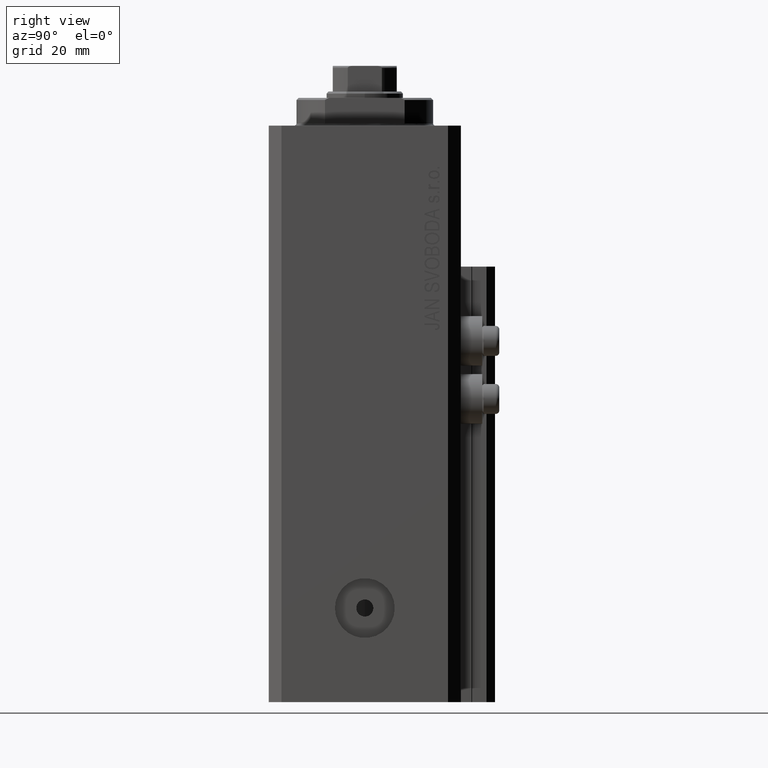
[diagram: clean part render]
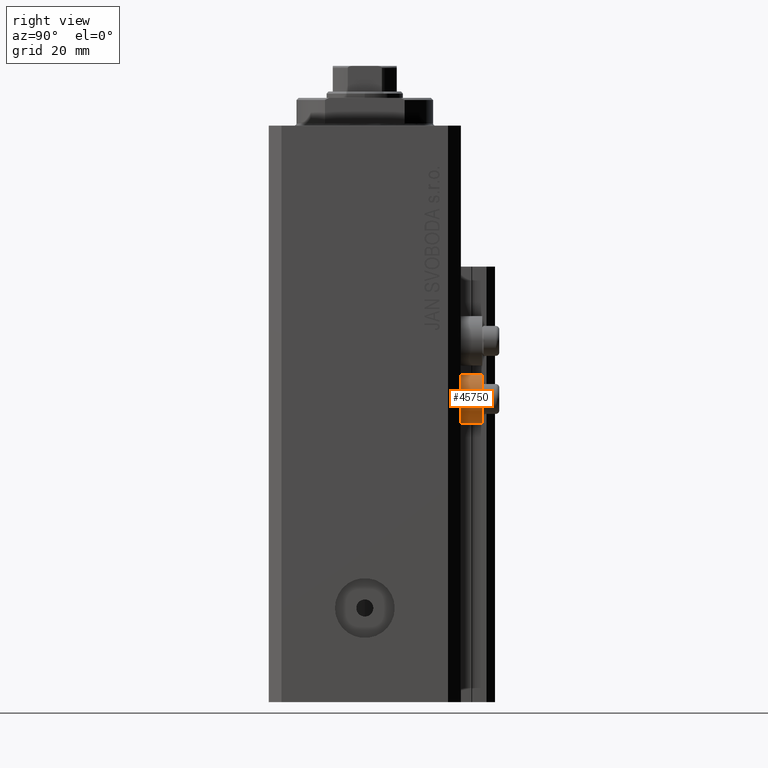
[diagram: same view with one face highlighted and labeled with its STEP entity id]
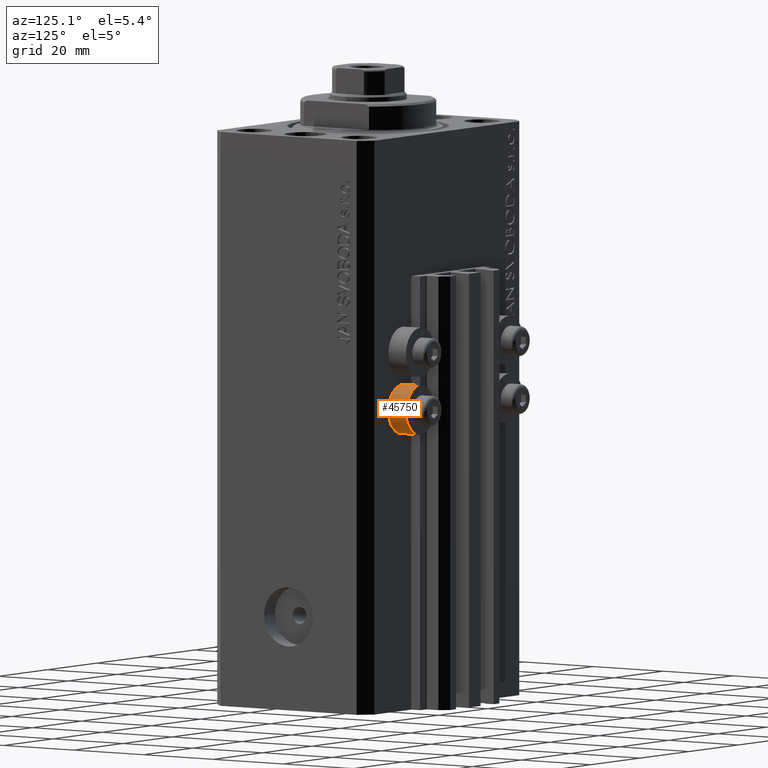
[diagram: same view with one face highlighted and labeled with its STEP entity id]
A machine part, right view. The second image highlights one B-rep face of the part: STEP entity #45750.
A second angle (auxiliary view) of the same face is appended — the face is thin or edge-on in the first view.
In plain terms, the highlighted cylindrical surface (edge-blend (fillet) strip) has radius 5.8 mm, axis along (0, 1, 0).
Its self-contained STEP definition (entity closure, byte-faithful):
#515 = FACE_OUTER_BOUND ( 'NONE', #25124, .T. ) ;
#850 = CARTESIAN_POINT ( 'NONE',  ( 18.00000000000000355, 22.49999999999951328, -64.00000000000000000 ) ) ;
#1754 = CARTESIAN_POINT ( 'NONE',  ( 18.00000000000000355, 27.49999999996051514, -64.00000000000000000 ) ) ;
#2635 = LINE ( 'NONE', #16273, #33500 ) ;
#4101 = CARTESIAN_POINT ( 'NONE',  ( 18.00000000000000355, 27.49999999996051514, -64.00000000000000000 ) ) ;
#7251 = ORIENTED_EDGE ( 'NONE', *, *, #36848, .T. ) ;
#7679 = DIRECTION ( 'NONE',  ( 0.000000000000000000, 0.000000000000000000, -1.000000000000000000 ) ) ;
#8127 = ORIENTED_EDGE ( 'NONE', *, *, #16972, .F. ) ;
#9129 = CARTESIAN_POINT ( 'NONE',  ( 18.00000000000000355, 27.49999999996051514, -58.20000000000000284 ) ) ;
#11967 = CYLINDRICAL_SURFACE ( 'NONE', #42027, 5.799999999999999822 ) ;
#13875 = AXIS2_PLACEMENT_3D ( 'NONE', #1754, #16338, #30876 ) ;
#15012 = DIRECTION ( 'NONE',  ( 0.000000000000000000, 1.000000000000000000, 0.000000000000000000 ) ) ;
#15501 = CARTESIAN_POINT ( 'NONE',  ( 18.00000000000000355, 27.49999999996051514, -69.79999999999999716 ) ) ;
#16273 = CARTESIAN_POINT ( 'NONE',  ( 18.00000000000000355, 27.49999999996051514, -69.79999999999999716 ) ) ;
#16338 = DIRECTION ( 'NONE',  ( 0.000000000000000000, 1.000000000000000000, 0.000000000000000000 ) ) ;
#16528 = VERTEX_POINT ( 'NONE', #9129 ) ;
#16972 = EDGE_CURVE ( 'NONE', #36110, #16528, #19079, .T. ) ;
#17532 = CIRCLE ( 'NONE', #36562, 5.799999999999999822 ) ;
#19079 = LINE ( 'NONE', #25502, #28123 ) ;
#22009 = DIRECTION ( 'NONE',  ( 0.000000000000000000, 1.000000000000000000, 0.000000000000000000 ) ) ;
#23062 = CARTESIAN_POINT ( 'NONE',  ( 18.00000000000000355, 22.49999999999951328, -58.20000000000000284 ) ) ;
#24319 = ORIENTED_EDGE ( 'NONE', *, *, #46678, .F. ) ;
#24347 = VERTEX_POINT ( 'NONE', #34923 ) ;
#24769 = VERTEX_POINT ( 'NONE', #15501 ) ;
#25124 = EDGE_LOOP ( 'NONE', ( #8127, #28948, #7251, #24319 ) ) ;
#25502 = CARTESIAN_POINT ( 'NONE',  ( 18.00000000000000355, 27.49999999996051514, -58.20000000000000284 ) ) ;
#28123 = VECTOR ( 'NONE', #15012, 1000.000000000000000 ) ;
#28948 = ORIENTED_EDGE ( 'NONE', *, *, #40806, .T. ) ;
#30876 = DIRECTION ( 'NONE',  ( 0.000000000000000000, 0.000000000000000000, -1.000000000000000000 ) ) ;
#31519 = DIRECTION ( 'NONE',  ( 0.000000000000000000, 1.000000000000000000, 0.000000000000000000 ) ) ;
#33500 = VECTOR ( 'NONE', #31519, 1000.000000000000000 ) ;
#34923 = CARTESIAN_POINT ( 'NONE',  ( 18.00000000000000355, 22.49999999999951328, -69.79999999999999716 ) ) ;
#36110 = VERTEX_POINT ( 'NONE', #23062 ) ;
#36562 = AXIS2_PLACEMENT_3D ( 'NONE', #850, #37597, #36906 ) ;
#36848 = EDGE_CURVE ( 'NONE', #24347, #24769, #2635, .T. ) ;
#36906 = DIRECTION ( 'NONE',  ( 0.000000000000000000, 0.000000000000000000, -1.000000000000000000 ) ) ;
#37597 = DIRECTION ( 'NONE',  ( 0.000000000000000000, 1.000000000000000000, 0.000000000000000000 ) ) ;
#40806 = EDGE_CURVE ( 'NONE', #36110, #24347, #17532, .T. ) ;
#41308 = CIRCLE ( 'NONE', #13875, 5.799999999999999822 ) ;
#42027 = AXIS2_PLACEMENT_3D ( 'NONE', #4101, #22009, #7679 ) ;
#45750 = ADVANCED_FACE ( 'NONE', ( #515 ), #11967, .T. ) ;
#46678 = EDGE_CURVE ( 'NONE', #16528, #24769, #41308, .T. ) ;